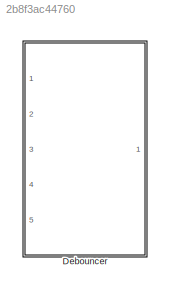
MODEL slx_2b8f3ac44760
KIND library
CONFIG AbsTol = auto
CONFIG EnableMultiTasking = off
CONFIG FixedStep = auto
CONFIG MaxStep = auto
CONFIG MinStep = auto
CONFIG RelTol = 1e-3
CONFIG SampleTimeConstraint = Unconstrained
CONFIG Solver = VariableStepAuto
CONFIG SolverName = VariableStepAuto
CONFIG StartTime = 0.0
CONFIG StopTime = 10.0
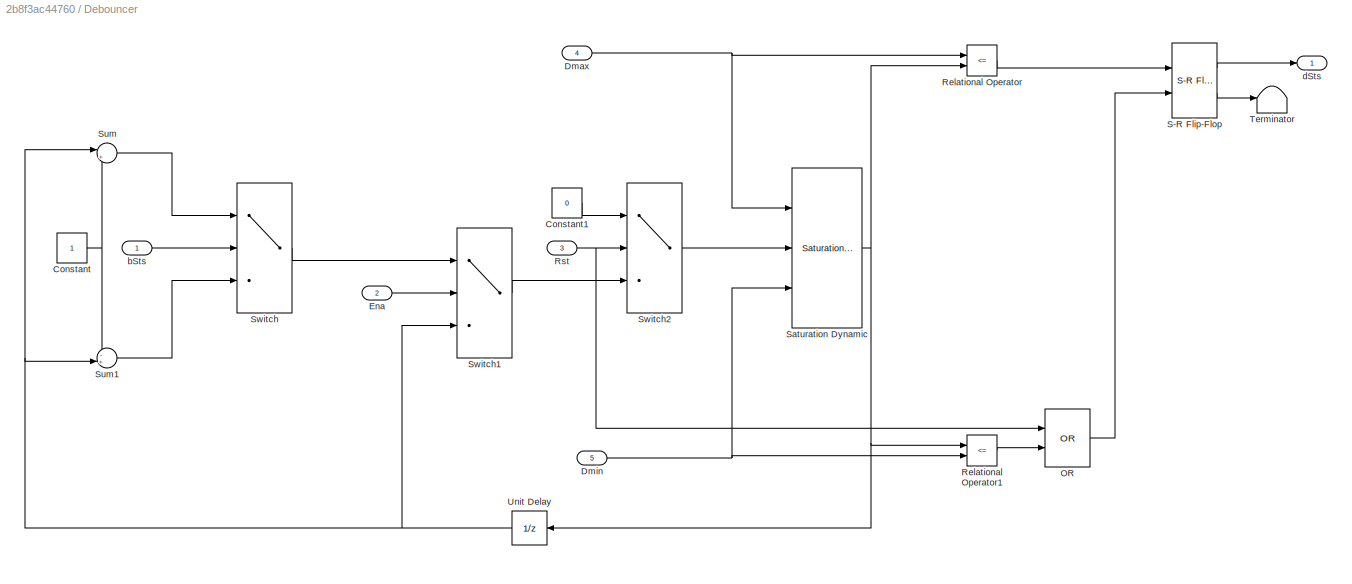
BLOCK [SubSystem] Debouncer
  Ports = [5, 1]
  RequestExecContextInheritance = off
BLOCK [Constant] Debouncer/Constant
BLOCK [Constant] Debouncer/Constant1
  Value = 0
BLOCK [Inport] Debouncer/Dmax
  IconDisplay = Port number
  Port = 4
BLOCK [Inport] Debouncer/Dmin
  IconDisplay = Port number
  Port = 5
BLOCK [Inport] Debouncer/Ena
  IconDisplay = Port number
  Port = 2
BLOCK [Logic] Debouncer/OR
  AllPortsSameDT = off
  IconShape = distinctive
  Operator = OR
  OutDataTypeStr = boolean
  Ports = [2, 1]
BLOCK [RelationalOperator] Debouncer/Relational Operator
  InputSameDT = off
  Operator = <=
  OutDataTypeStr = boolean
  Ports = [2, 1]
  RndMeth = Simplest
BLOCK [RelationalOperator] Debouncer/Relational Operator1
  InputSameDT = off
  Operator = <=
  OutDataTypeStr = boolean
  Ports = [2, 1]
  RndMeth = Simplest
BLOCK [Inport] Debouncer/Rst
  IconDisplay = Port number
  Port = 3
BLOCK [Reference] Debouncer/S-R Flip-Flop  REF=simulink_extras/Flip Flops/S-R
Flip-Flop
  Ports = [2, 2]
  SourceBlock = simulink_extras/Flip Flops/S-R\nFlip-Flop
  SourceProductBaseCode = SL
  SourceProductName = Simulink
  SourceType = SRFlipFlop
BLOCK [Reference] Debouncer/Saturation Dynamic  REF=simulink/Discontinuities/Saturation
Dynamic
  Ports = [3, 1]
  SourceBlock = simulink/Discontinuities/Saturation\nDynamic
  SourceProductBaseCode = SL
  SourceProductName = Simulink
  SourceType = Saturation Dynamic
BLOCK [Sum] Debouncer/Sum
  IconShape = round
  InputSameDT = off
  Inputs = |++
  OutDataTypeStr = Inherit: Inherit via internal rule
  Ports = [2, 1]
  SaturateOnIntegerOverflow = off
BLOCK [Sum] Debouncer/Sum1
  IconShape = round
  InputSameDT = off
  Inputs = -+|
  OutDataTypeStr = Inherit: Inherit via internal rule
  Ports = [2, 1]
  SaturateOnIntegerOverflow = off
BLOCK [Switch] Debouncer/Switch
  Criteria = u2 ~= 0
  InputSameDT = off
  SaturateOnIntegerOverflow = off
BLOCK [Switch] Debouncer/Switch1
  Criteria = u2 ~= 0
  InputSameDT = off
  SaturateOnIntegerOverflow = off
BLOCK [Switch] Debouncer/Switch2
  Criteria = u2 ~= 0
  InputSameDT = off
  SaturateOnIntegerOverflow = off
BLOCK [Terminator] Debouncer/Terminator
BLOCK [UnitDelay] Debouncer/Unit Delay
  InputProcessing = Elements as channels (sample based)
  SampleTime = -1
BLOCK [Inport] Debouncer/bSts
  IconDisplay = Port number
BLOCK [Outport] Debouncer/dSts
  IconDisplay = Port number
LINE Debouncer/Constant1:1 -> Debouncer/Switch2:1
NET Debouncer/Constant:1 -> Debouncer/Sum1:1, Debouncer/Sum:2
NET Debouncer/Dmax:1 -> Debouncer/Relational Operator:1, Debouncer/Saturation Dynamic:1
NET Debouncer/Dmin:1 -> Debouncer/Relational Operator1:2, Debouncer/Saturation Dynamic:3
LINE Debouncer/Ena:1 -> Debouncer/Switch1:2
LINE Debouncer/OR:1 -> Debouncer/S-R Flip-Flop:2
LINE Debouncer/Relational Operator1:1 -> Debouncer/OR:2
LINE Debouncer/Relational Operator:1 -> Debouncer/S-R Flip-Flop:1
NET Debouncer/Rst:1 -> Debouncer/OR:1, Debouncer/Switch2:2
LINE Debouncer/S-R Flip-Flop:1 -> Debouncer/dSts:1
LINE Debouncer/S-R Flip-Flop:2 -> Debouncer/Terminator:1
NET Debouncer/Saturation Dynamic:1 -> Debouncer/Relational Operator1:1, Debouncer/Relational Operator:2, Debouncer/Unit Delay:1
LINE Debouncer/Sum1:1 -> Debouncer/Switch:3
LINE Debouncer/Sum:1 -> Debouncer/Switch:1
LINE Debouncer/Switch1:1 -> Debouncer/Switch2:3
LINE Debouncer/Switch2:1 -> Debouncer/Saturation Dynamic:2
LINE Debouncer/Switch:1 -> Debouncer/Switch1:1
NET Debouncer/Unit Delay:1 -> Debouncer/Sum1:2, Debouncer/Sum:1, Debouncer/Switch1:3
LINE Debouncer/bSts:1 -> Debouncer/Switch:2
note: NET lines group one-source signal fan-out (src -> all destinations, sorted); 1:1 wires keep LINE
